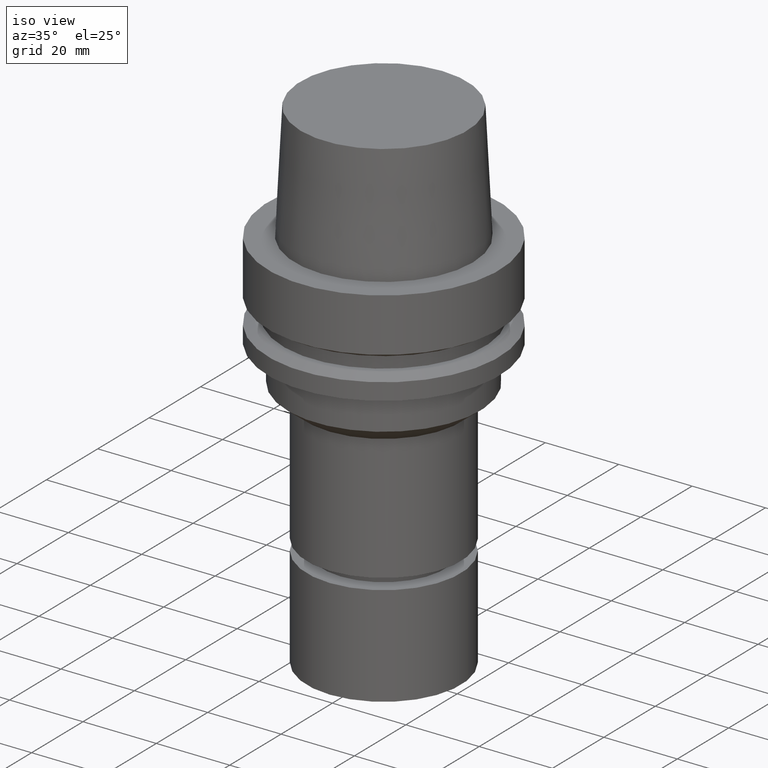
[diagram: clean part render]
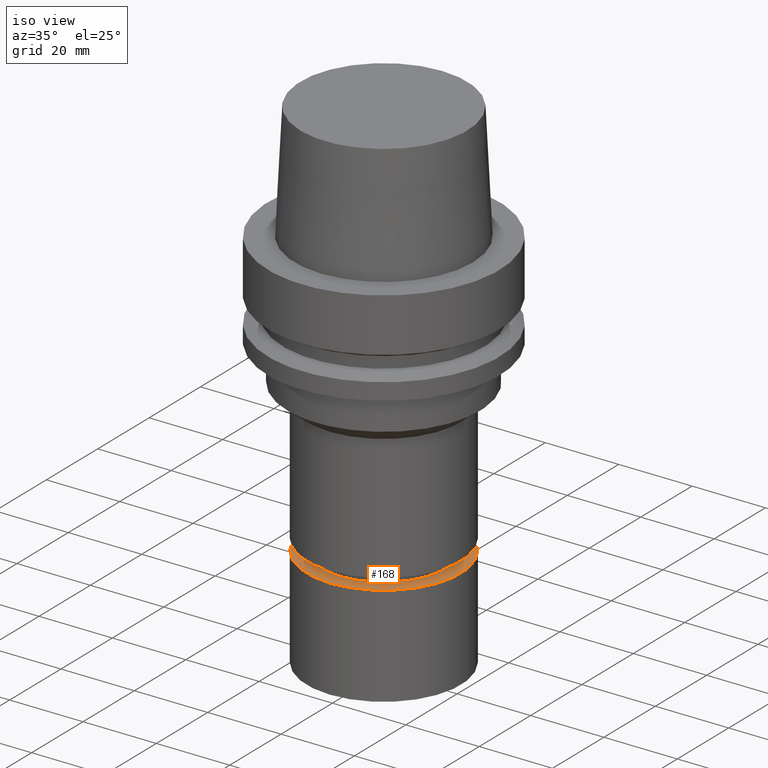
[diagram: same view with one face highlighted and labeled with its STEP entity id]
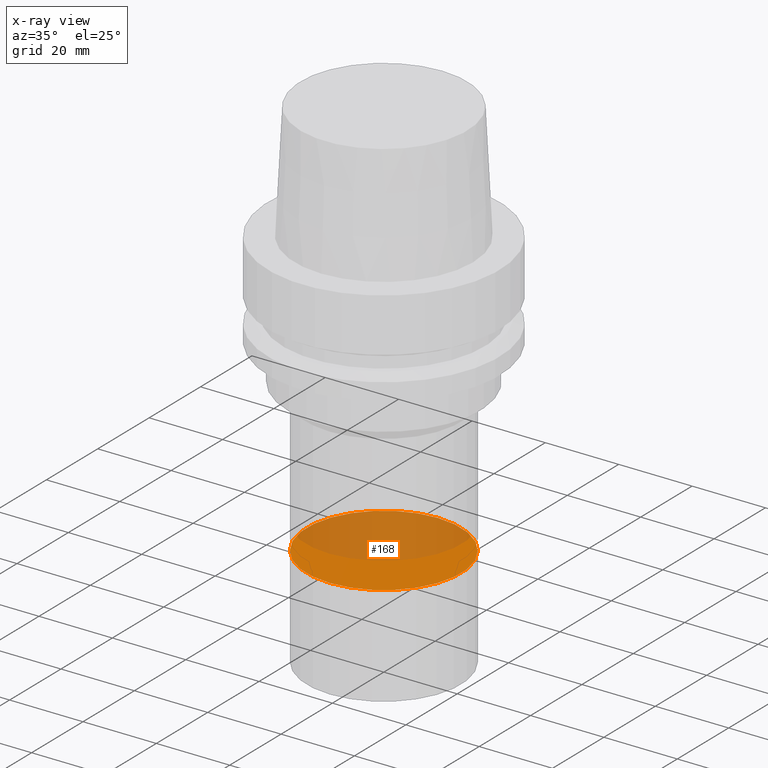
[diagram: x-ray of the same camera — body ghosted, the highlighted face saturated]
A machine part, iso view. The second image highlights one B-rep face of the part: STEP entity #168.
The next image is the same camera in x-ray: the body ghosted, the highlighted face saturated — about 54% of this face is hidden behind the body in this view.
In plain terms, the highlighted planar face has unit normal (-0, -0, 1).
Its self-contained STEP definition (entity closure, byte-faithful):
#168=ADVANCED_FACE('Unnamed[1]',(#351),#352,.T.);
#175=EDGE_CURVE('Unnamed[1]',#362,#362,#363,.T.);
#351=FACE_OUTER_BOUND('',#575,.T.);
#352=PLANE('',#576);
#362=VERTEX_POINT('',#589);
#363=CIRCLE('',#590,21.0);
#575=EDGE_LOOP('',(#780));
#576=AXIS2_PLACEMENT_3D('',#781,#782,#783);
#589=CARTESIAN_POINT('',(4.74550634669599E-015,21.0,-77.5));
#590=AXIS2_PLACEMENT_3D('',#793,#794,#795);
#780=ORIENTED_EDGE('',*,*,#175,.F.);
#781=CARTESIAN_POINT('',(4.74550634669599E-015,10.5,-77.5));
#782=DIRECTION('',(-6.12323399573677E-017,-1.22464679914735E-016,1.0));
#783=DIRECTION('',(1.23259516440783E-032,-1.0,-1.22464679914735E-016));
#793=CARTESIAN_POINT('',(4.74550634669599E-015,9.49101269339199E-015,-77.5));
#794=DIRECTION('',(6.12323399573677E-017,1.22464679914735E-016,-1.0));
#795=DIRECTION('',(-1.23259516440783E-032,1.0,1.22464679914735E-016));